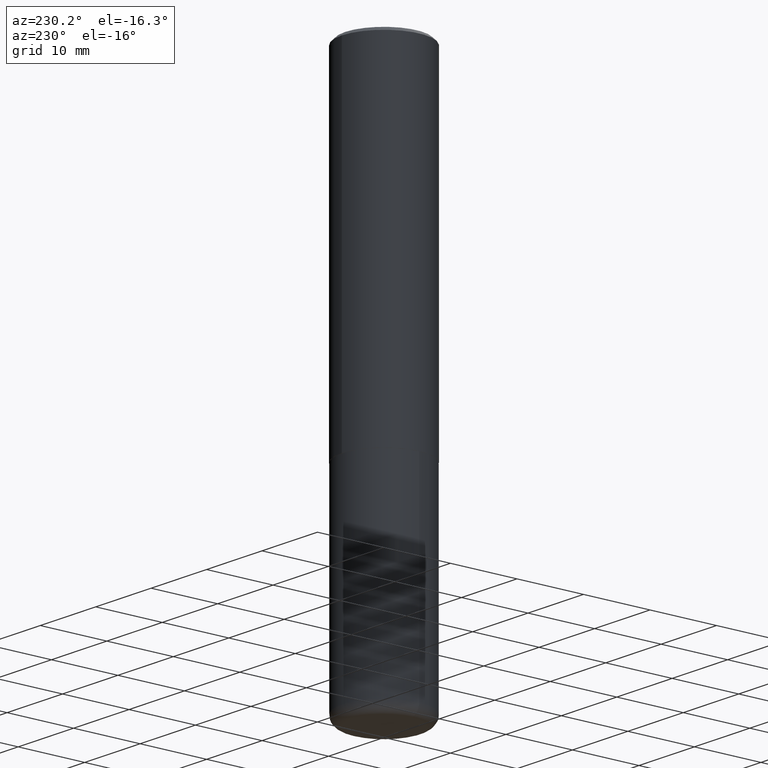
[diagram: clean part render]
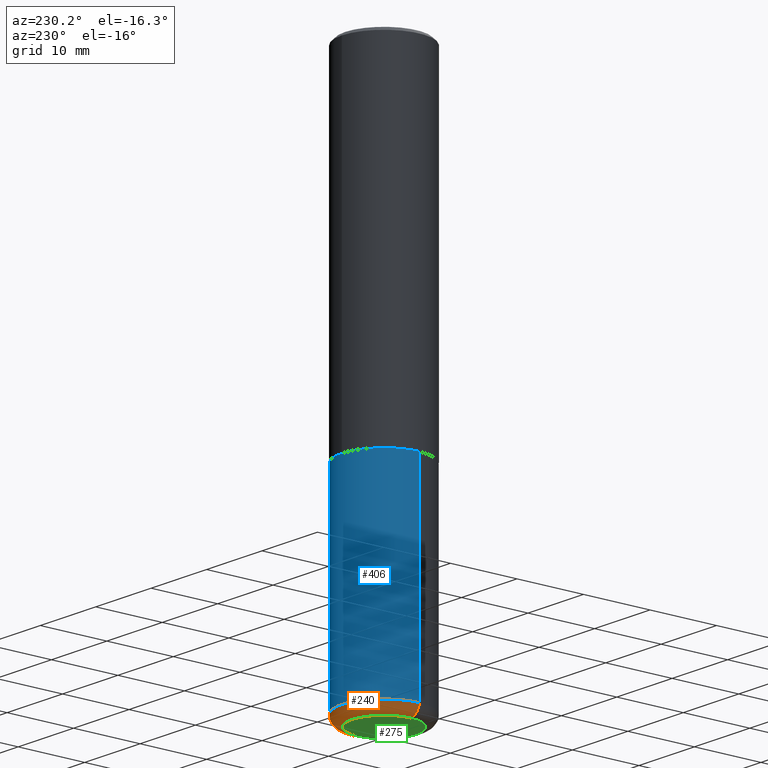
[diagram: same view with three faces highlighted in distinct colors, each labeled with its STEP entity id]
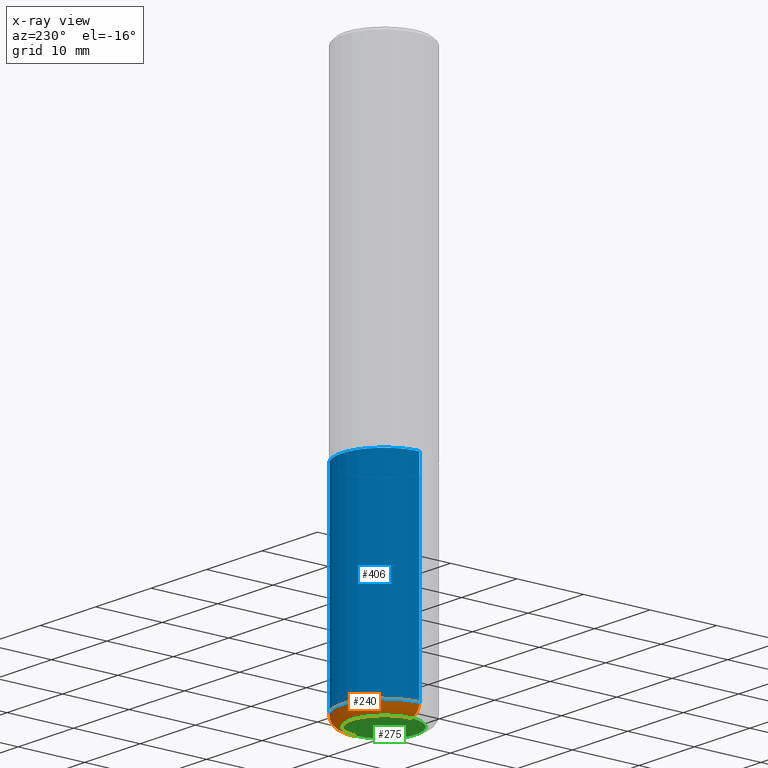
[diagram: x-ray of the same camera — body ghosted, the three highlighted faces saturated]
A machine part, auxiliary view with three faces highlighted in distinct colors.
The next image is the same camera in x-ray (body ghosted, the three faces saturated) — at least one of them is partly hidden behind the body in this view.
Their STEP definitions:

[orange] entity #240 — the highlighted toroidal blend (fillet) surface has major radius 4.826 mm and minor (blend) radius 1.524 mm.
#4 = DIRECTION ( 'NONE',  ( 1.000000000000000000, -6.982962677686274599E-15, 0.000000000000000000 ) ) ;
#9 = CARTESIAN_POINT ( 'NONE',  ( 7.801045491730585789E-29, -1.113782547090963453E-14, -3.189999999999999947 ) ) ;
#24 = ORIENTED_EDGE ( 'NONE', *, *, #270, .F. ) ;
#26 = ORIENTED_EDGE ( 'NONE', *, *, #109, .T. ) ;
#31 = DIRECTION ( 'NONE',  ( 1.000000000000000000, -6.982962677686261977E-15, 0.000000000000000000 ) ) ;
#48 = CARTESIAN_POINT ( 'NONE',  ( 0.1899999999999999745, -1.267407726000061289E-14, -3.250000000000000000 ) ) ;
#53 = CIRCLE ( 'NONE', #110, 0.1899999999999999745 ) ;
#72 = CARTESIAN_POINT ( 'NONE',  ( 7.801045491730585789E-29, -1.113782547090963453E-14, -3.189999999999999947 ) ) ;
#84 = TOROIDAL_SURFACE ( 'NONE', #141, 0.1899999999999999745, 0.05999999999999995615 ) ;
#94 = DIRECTION ( 'NONE',  ( -2.445468806185136597E-29, 3.491481338843145583E-15, 1.000000000000000000 ) ) ;
#96 = DIRECTION ( 'NONE',  ( 1.000000000000000000, -6.982962677686265133E-15, 4.883557194083112340E-29 ) ) ;
#109 = EDGE_CURVE ( 'NONE', #384, #185, #342, .T. ) ;
#110 = AXIS2_PLACEMENT_3D ( 'NONE', #258, #94, #31 ) ;
#118 = ORIENTED_EDGE ( 'NONE', *, *, #254, .F. ) ;
#137 = DIRECTION ( 'NONE',  ( -6.982962677686266711E-15, -1.000000000000000000, 3.491481338843145583E-15 ) ) ;
#141 = AXIS2_PLACEMENT_3D ( 'NONE', #9, #395, #96 ) ;
#153 = EDGE_LOOP ( 'NONE', ( #211, #26, #24, #118 ) ) ;
#178 = CARTESIAN_POINT ( 'NONE',  ( -0.1899999999999999745, -9.679375892402709259E-15, -3.250000000000000000 ) ) ;
#185 = VERTEX_POINT ( 'NONE', #297 ) ;
#194 = DIRECTION ( 'NONE',  ( 7.105427357601001859E-15, 1.000000000000000000, -3.491481338843145583E-15 ) ) ;
#197 = AXIS2_PLACEMENT_3D ( 'NONE', #302, #137, #4 ) ;
#207 = EDGE_CURVE ( 'NONE', #346, #384, #53, .T. ) ;
#211 = ORIENTED_EDGE ( 'NONE', *, *, #207, .T. ) ;
#232 = DIRECTION ( 'NONE',  ( -1.000000000000000000, 7.105427357600997914E-15, 0.000000000000000000 ) ) ;
#237 = CARTESIAN_POINT ( 'NONE',  ( 0.2499999999999999722, -1.288356614033120121E-14, -3.189999999999999947 ) ) ;
#240 = ADVANCED_FACE ( 'NONE', ( #350 ), #84, .T. ) ;
#251 = VERTEX_POINT ( 'NONE', #237 ) ;
#254 = EDGE_CURVE ( 'NONE', #346, #251, #388, .T. ) ;
#258 = CARTESIAN_POINT ( 'NONE',  ( 7.947773620101693940E-29, -1.134731435124022443E-14, -3.250000000000000000 ) ) ;
#259 = AXIS2_PLACEMENT_3D ( 'NONE', #417, #194, #232 ) ;
#270 = EDGE_CURVE ( 'NONE', #251, #185, #305, .T. ) ;
#297 = CARTESIAN_POINT ( 'NONE',  ( -0.2499999999999999722, -9.361468631509382488E-15, -3.189999999999999947 ) ) ;
#301 = AXIS2_PLACEMENT_3D ( 'NONE', #72, #327, #398 ) ;
#302 = CARTESIAN_POINT ( 'NONE',  ( 0.1899999999999999745, -1.246458837967002615E-14, -3.189999999999999947 ) ) ;
#305 = CIRCLE ( 'NONE', #301, 0.2500000000000000000 ) ;
#327 = DIRECTION ( 'NONE',  ( -2.445468806185136597E-29, 3.491481338843145583E-15, 1.000000000000000000 ) ) ;
#342 = CIRCLE ( 'NONE', #259, 0.05999999999999994227 ) ;
#346 = VERTEX_POINT ( 'NONE', #48 ) ;
#350 = FACE_OUTER_BOUND ( 'NONE', #153, .T. ) ;
#384 = VERTEX_POINT ( 'NONE', #178 ) ;
#388 = CIRCLE ( 'NONE', #197, 0.05999999999999994227 ) ;
#395 = DIRECTION ( 'NONE',  ( -2.445468806185136597E-29, 3.491481338843145583E-15, 1.000000000000000000 ) ) ;
#398 = DIRECTION ( 'NONE',  ( 1.000000000000000000, -6.982962677686270655E-15, 0.000000000000000000 ) ) ;
#417 = CARTESIAN_POINT ( 'NONE',  ( -0.1899999999999999745, -9.787794272965444556E-15, -3.189999999999999947 ) ) ;

[blue] entity #406 — the highlighted cylindrical surface (partial cylindrical patch) has radius 6.35 mm, axis along (-0, 0, 1).
#2 = CARTESIAN_POINT ( 'NONE',  ( 4.890937612370273194E-29, -6.982962677686291165E-15, -2.000000000000000000 ) ) ;
#12 = FACE_OUTER_BOUND ( 'NONE', #412, .T. ) ;
#32 = LINE ( 'NONE', #366, #378 ) ;
#35 = AXIS2_PLACEMENT_3D ( 'NONE', #2, #130, #372 ) ;
#57 = ORIENTED_EDGE ( 'NONE', *, *, #270, .T. ) ;
#60 = AXIS2_PLACEMENT_3D ( 'NONE', #142, #402, #210 ) ;
#72 = CARTESIAN_POINT ( 'NONE',  ( 7.801045491730585789E-29, -1.113782547090963453E-14, -3.189999999999999947 ) ) ;
#80 = CYLINDRICAL_SURFACE ( 'NONE', #60, 0.2500000000000000000 ) ;
#88 = ORIENTED_EDGE ( 'NONE', *, *, #399, .T. ) ;
#126 = CARTESIAN_POINT ( 'NONE',  ( 0.2500000000000000000, -8.728703347107857054E-15, -2.000000000000000000 ) ) ;
#130 = DIRECTION ( 'NONE',  ( -2.445468806185136597E-29, 3.491481338843145583E-15, 1.000000000000000000 ) ) ;
#138 = CARTESIAN_POINT ( 'NONE',  ( -0.2500000000000000000, -7.284037234897712778E-15, -2.000000000000000000 ) ) ;
#142 = CARTESIAN_POINT ( 'NONE',  ( 0.000000000000000000, 0.000000000000000000, 0.000000000000000000 ) ) ;
#145 = CARTESIAN_POINT ( 'NONE',  ( -0.2500000000000000000, 1.776356839400250465E-15, -1.229733772563726445E-29 ) ) ;
#169 = DIRECTION ( 'NONE',  ( -2.445468806185136877E-29, 3.491481338843145188E-15, 1.000000000000000000 ) ) ;
#185 = VERTEX_POINT ( 'NONE', #297 ) ;
#201 = VERTEX_POINT ( 'NONE', #126 ) ;
#210 = DIRECTION ( 'NONE',  ( 1.000000000000000000, -6.982962677686266711E-15, 4.876176775795935793E-29 ) ) ;
#213 = CIRCLE ( 'NONE', #35, 0.2500000000000000000 ) ;
#217 = EDGE_CURVE ( 'NONE', #201, #379, #213, .T. ) ;
#237 = CARTESIAN_POINT ( 'NONE',  ( 0.2499999999999999722, -1.288356614033120121E-14, -3.189999999999999947 ) ) ;
#247 = EDGE_CURVE ( 'NONE', #251, #201, #32, .T. ) ;
#251 = VERTEX_POINT ( 'NONE', #237 ) ;
#270 = EDGE_CURVE ( 'NONE', #251, #185, #305, .T. ) ;
#271 = LINE ( 'NONE', #145, #334 ) ;
#272 = DIRECTION ( 'NONE',  ( -2.445468806185136877E-29, 3.491481338843145188E-15, 1.000000000000000000 ) ) ;
#297 = CARTESIAN_POINT ( 'NONE',  ( -0.2499999999999999722, -9.361468631509382488E-15, -3.189999999999999947 ) ) ;
#301 = AXIS2_PLACEMENT_3D ( 'NONE', #72, #327, #398 ) ;
#305 = CIRCLE ( 'NONE', #301, 0.2500000000000000000 ) ;
#314 = ORIENTED_EDGE ( 'NONE', *, *, #247, .F. ) ;
#327 = DIRECTION ( 'NONE',  ( -2.445468806185136597E-29, 3.491481338843145583E-15, 1.000000000000000000 ) ) ;
#334 = VECTOR ( 'NONE', #272, 39.37007874015748143 ) ;
#348 = ORIENTED_EDGE ( 'NONE', *, *, #217, .F. ) ;
#366 = CARTESIAN_POINT ( 'NONE',  ( 0.2500000000000000000, -1.745740669421566678E-15, 1.219044193948983948E-29 ) ) ;
#372 = DIRECTION ( 'NONE',  ( 1.000000000000000000, -6.982962677686266711E-15, 0.000000000000000000 ) ) ;
#378 = VECTOR ( 'NONE', #169, 39.37007874015748143 ) ;
#379 = VERTEX_POINT ( 'NONE', #138 ) ;
#398 = DIRECTION ( 'NONE',  ( 1.000000000000000000, -6.982962677686270655E-15, 0.000000000000000000 ) ) ;
#399 = EDGE_CURVE ( 'NONE', #185, #379, #271, .T. ) ;
#402 = DIRECTION ( 'NONE',  ( -2.445468806185136597E-29, 3.491481338843145583E-15, 1.000000000000000000 ) ) ;
#406 = ADVANCED_FACE ( 'NONE', ( #12 ), #80, .T. ) ;
#412 = EDGE_LOOP ( 'NONE', ( #57, #88, #348, #314 ) ) ;

[green] entity #275 — the highlighted planar face has unit normal (0, -0, -1).
#31 = DIRECTION ( 'NONE',  ( 1.000000000000000000, -6.982962677686261977E-15, 0.000000000000000000 ) ) ;
#40 = PLANE ( 'NONE',  #318 ) ;
#43 = DIRECTION ( 'NONE',  ( 1.000000000000000000, -6.982962677686261977E-15, 0.000000000000000000 ) ) ;
#48 = CARTESIAN_POINT ( 'NONE',  ( 0.1899999999999999745, -1.267407726000061289E-14, -3.250000000000000000 ) ) ;
#53 = CIRCLE ( 'NONE', #110, 0.1899999999999999745 ) ;
#55 = EDGE_LOOP ( 'NONE', ( #352, #183 ) ) ;
#70 = FACE_OUTER_BOUND ( 'NONE', #55, .T. ) ;
#94 = DIRECTION ( 'NONE',  ( -2.445468806185136597E-29, 3.491481338843145583E-15, 1.000000000000000000 ) ) ;
#110 = AXIS2_PLACEMENT_3D ( 'NONE', #258, #94, #31 ) ;
#112 = DIRECTION ( 'NONE',  ( -2.445468806185136597E-29, 3.491481338843145583E-15, 1.000000000000000000 ) ) ;
#170 = DIRECTION ( 'NONE',  ( -1.000000000000000000, 6.982962677686265922E-15, -4.876176775795935793E-29 ) ) ;
#178 = CARTESIAN_POINT ( 'NONE',  ( -0.1899999999999999745, -9.679375892402709259E-15, -3.250000000000000000 ) ) ;
#183 = ORIENTED_EDGE ( 'NONE', *, *, #404, .F. ) ;
#207 = EDGE_CURVE ( 'NONE', #346, #384, #53, .T. ) ;
#258 = CARTESIAN_POINT ( 'NONE',  ( 7.947773620101693940E-29, -1.134731435124022443E-14, -3.250000000000000000 ) ) ;
#267 = CARTESIAN_POINT ( 'NONE',  ( 7.947773620101693940E-29, -1.134731435124022443E-14, -3.250000000000000000 ) ) ;
#268 = CIRCLE ( 'NONE', #285, 0.1899999999999999745 ) ;
#275 = ADVANCED_FACE ( 'NONE', ( #70 ), #40, .T. ) ;
#285 = AXIS2_PLACEMENT_3D ( 'NONE', #374, #112, #43 ) ;
#318 = AXIS2_PLACEMENT_3D ( 'NONE', #267, #332, #170 ) ;
#332 = DIRECTION ( 'NONE',  ( 2.438088387897960049E-29, -3.491481338843145188E-15, -1.000000000000000000 ) ) ;
#346 = VERTEX_POINT ( 'NONE', #48 ) ;
#352 = ORIENTED_EDGE ( 'NONE', *, *, #207, .F. ) ;
#374 = CARTESIAN_POINT ( 'NONE',  ( 7.947773620101693940E-29, -1.134731435124022443E-14, -3.250000000000000000 ) ) ;
#384 = VERTEX_POINT ( 'NONE', #178 ) ;
#404 = EDGE_CURVE ( 'NONE', #384, #346, #268, .T. ) ;